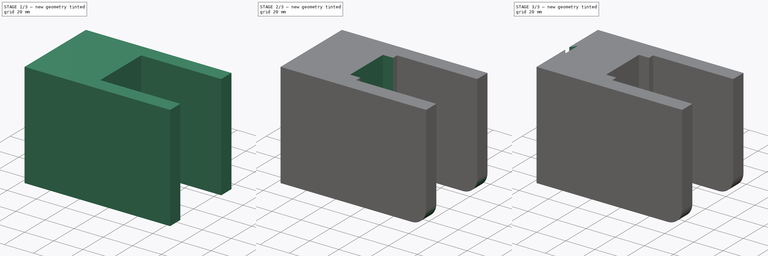
[diagram: build sequence overview — one tinted view per stage of 3, left to right]
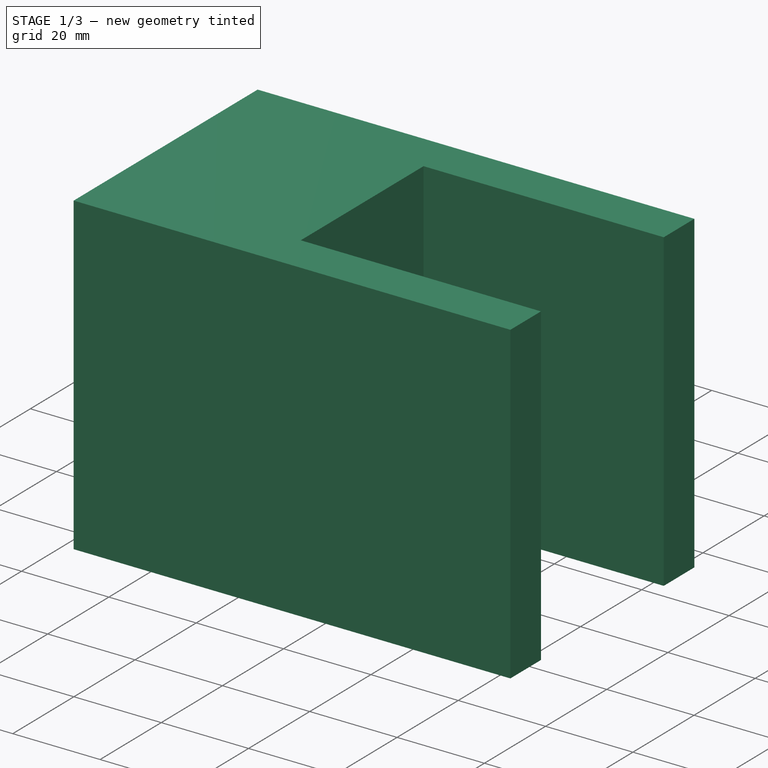
[diagram: stage 1 of 3 — iso view after this stage's code; geometry added in this stage tinted green]
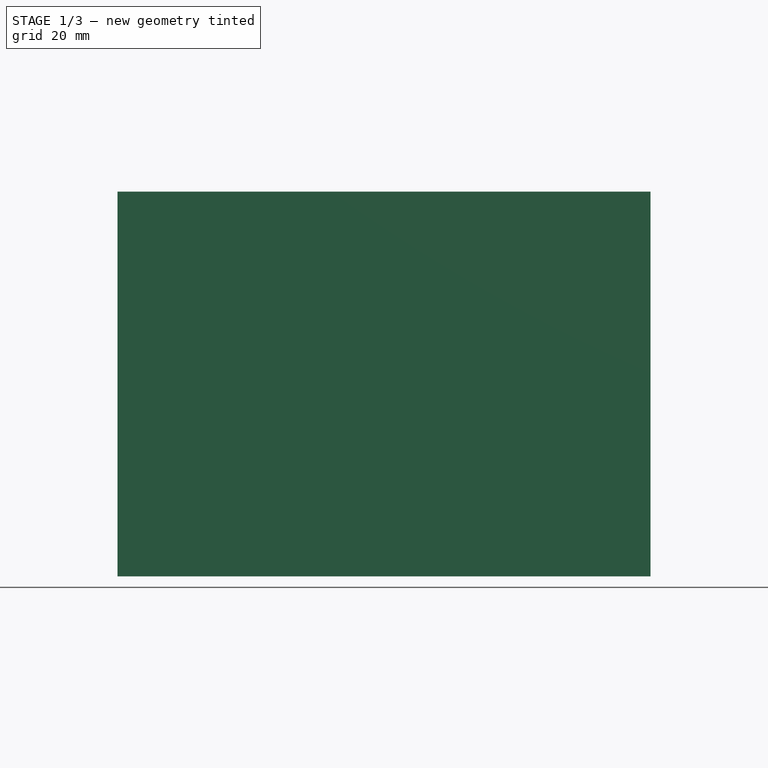
[diagram: stage 1 of 3 — front view after this stage's code; geometry added in this stage tinted green]
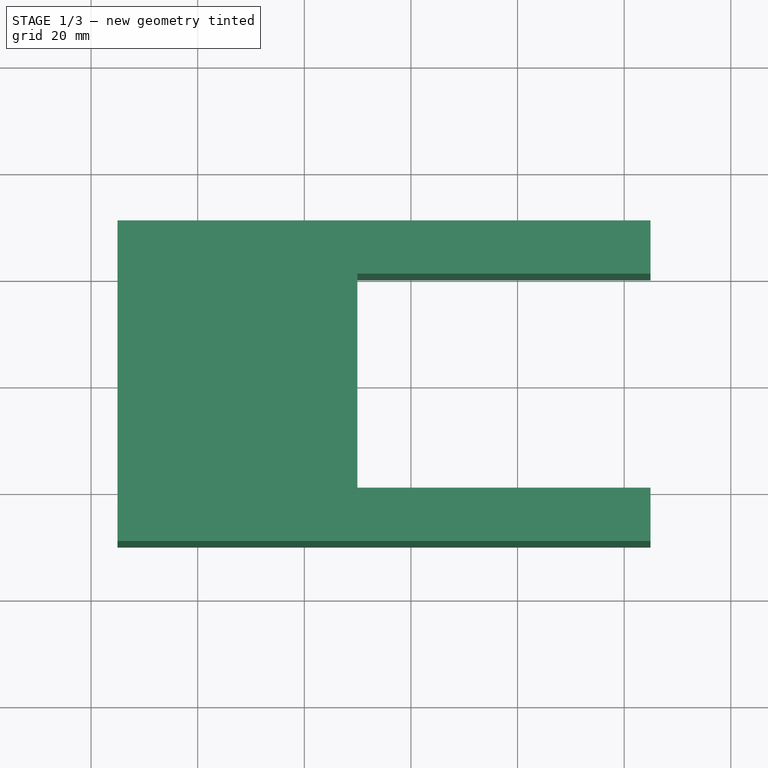
[diagram: stage 1 of 3 — top view after this stage's code; geometry added in this stage tinted green]
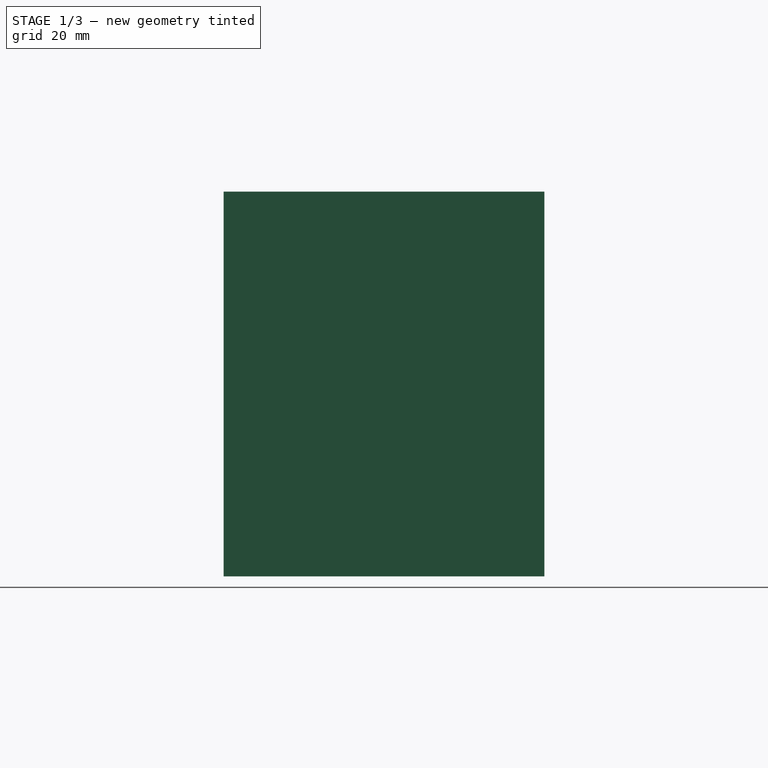
[diagram: stage 1 of 3 — right view after this stage's code; geometry added in this stage tinted green]
FCSTD DOCUMENT  (FreeCAD 0.20R29177 (Git))
Label: Box02
License: All rights reserved
LicenseURL: http://en.wikipedia.org/wiki/All_rights_reserved
objects: Sketcher::SketchObject×5, PartDesign::Pad×3, PartDesign::Pocket×2, PartDesign::Fillet×1, PartDesign::Body×1
note: 18 computed .brp shape members not serialized (recipe doc carries the construction recipe); baked Part::Feature solids carry a one-line shape summary decoded from their .brp

FEATURE [Sketcher::SketchObject] Sketch  label="Base001"
  FullyConstrained = false
  MapMode = 3
  Placement = pos=(24.6951,0,0) rot=(0.57735,0.57735,0.57735;4.18879rad)
  sketch-geometry (14):
    g0: LineSegment StartX=-27.0896 StartY=5.25177 StartZ=0 EndX=34.3104 EndY=5.25177 EndZ=0
    g1: LineSegment StartX=-35.6896 StartY=-4.04823 StartZ=0 EndX=-35.6896 EndY=0.251773 EndZ=0
    g2: LineSegment StartX=-27.0896 StartY=-1.74823 StartZ=0 EndX=-29.3896 EndY=-1.74823 EndZ=0
    g3: LineSegment StartX=-27.0896 StartY=5.25177 StartZ=0 EndX=-27.0896 EndY=-1.74823 EndZ=0
    g4: LineSegment StartX=-35.6896 StartY=0.251773 StartZ=0 EndX=-33.6896 EndY=0.251773 EndZ=0
    g5: LineSegment StartX=-33.6896 StartY=0.251773 StartZ=0 EndX=-33.6896 EndY=-1.74823 EndZ=0
    g6: LineSegment StartX=-31.3896 StartY=0.251773 StartZ=0 EndX=-29.3896 EndY=0.251773 EndZ=0
    g7: LineSegment StartX=-29.3896 StartY=0.251773 StartZ=0 EndX=-29.3896 EndY=-1.74823 EndZ=0
    g8: LineSegment StartX=-31.3896 StartY=-1.74823 StartZ=0 EndX=-31.3896 EndY=0.251773 EndZ=0
    g9: LineSegment StartX=-31.3896 StartY=-1.74823 StartZ=0 EndX=-33.6896 EndY=-1.74823 EndZ=0
    g10: LineSegment StartX=-35.6896 StartY=-4.04823 StartZ=0 EndX=-37.8396 EndY=-4.04823 EndZ=0
    g11: LineSegment StartX=-37.8396 StartY=-4.04823 StartZ=0 EndX=-37.8396 EndY=-39.7482 EndZ=0
    g12: LineSegment StartX=-37.8396 StartY=-39.7482 StartZ=0 EndX=34.3104 EndY=-39.7482 EndZ=0
    g13: LineSegment StartX=34.3104 StartY=-39.7482 StartZ=0 EndX=34.3104 EndY=5.25177 EndZ=0
  constraints (39):
    c: Horizontal(g0)
    c: DistanceX(g1,g0) = 70
    c: Coincident(g3,g2)
    c: Horizontal(g2)
    c: Vertical(g3)
    c: DistanceY(g3,g3) = 7
    c: Coincident(g4,g5)
    c: Horizontal(g4)
    c: Vertical(g5)
    c: DistanceX(g4,g4) = 2
    c: DistanceY(g5,g5) = 2
    c: Coincident(g0,g3)
    c: Coincident(g6,g7)
    c: Coincident(g8,g6)
    c: Horizontal(g6)
    c: Vertical(g7)
    c: Vertical(g8)
    c: DistanceX(g6,g6) = 2
    c: DistanceY(g8,g8) = 2
    c: DistanceX(g4,g6) = 2.3
    c: Coincident(g2,g7)
    c: Tangent(g2,g9)
    c: Coincident(g8,g9)
    c: Coincident(g5,g9)
    c: Coincident(g10,g11)
    c: Coincident(g11,g12)
    c: Coincident(g12,g13)
    c: Horizontal(g10)
    c: Horizontal(g12)
    c: Vertical(g11)
    c: Vertical(g13)
    c: Coincident(g1,g10)
    c: Coincident(g13,g0)
    c: Vertical(g1)
    c: Coincident(g1,g4)
    c: DistanceX(g2,g2) = 2.3
    c: DistanceY(g1,g1) = 4.3
    c: DistanceX(g10,g10) = 2.15
    c: DistanceY(g13,g13) = 45
FEATURE [PartDesign::Pad] Pad  label="Base"
  AllowMultiFace = false
  Direction = (1,1,1)
  Length = 40.15
  Length2 = 100
  Placement = pos=(24.6951,0,0) rot=(0.57735,0.57735,0.57735;4.18879rad)
  Profile = -> Sketch
  Type = 0
FEATURE [Sketcher::SketchObject] Sketch001  label="Sides001"
  ExternalGeometry = -> [Pad]
  FullyConstrained = false
  MapMode = 5
  Placement = pos=(-15.0532,-8.7e-15,0) rot=(0,-1,0;1.5708rad)
  Support = -> [Pad]
  sketch-geometry (8):
    g0: LineSegment StartX=-37.8396 StartY=-3e-15 StartZ=0 EndX=34.3104 EndY=-3.1e-15 EndZ=0
    g1: LineSegment StartX=34.3104 StartY=-3.1e-15 StartZ=0 EndX=34.3104 EndY=-10 EndZ=0
    g2: LineSegment StartX=34.3104 StartY=-10 StartZ=0 EndX=-37.8396 EndY=-10 EndZ=0
    g3: LineSegment StartX=-37.8396 StartY=-10 StartZ=0 EndX=-37.8396 EndY=-3.6e-15 EndZ=0
    g4: LineSegment StartX=-37.8396 StartY=50.15 StartZ=0 EndX=34.3104 EndY=50.15 EndZ=0
    g5: LineSegment StartX=34.3104 StartY=50.15 StartZ=0 EndX=34.3104 EndY=40.15 EndZ=0
    g6: LineSegment StartX=34.3104 StartY=40.15 StartZ=0 EndX=-37.8396 EndY=40.15 EndZ=0
    g7: LineSegment StartX=-37.8396 StartY=40.15 StartZ=0 EndX=-37.8396 EndY=50.15 EndZ=0
  constraints (20):
    c: Coincident(g0,g1)
    c: Coincident(g1,g2)
    c: Coincident(g2,g3)
    c: Coincident(g3,g0)
    c: Horizontal(g2)
    c: Vertical(g1)
    c: Vertical(g3)
    c: Coincident(g4,g5)
    c: Coincident(g5,g6)
    c: Coincident(g6,g7)
    c: Coincident(g7,g4)
    c: Horizontal(g4)
    c: Vertical(g5)
    c: Vertical(g7)
    c: Coincident(g6,g-3)
    c: Coincident(g5,g-3)
    c: Coincident(g0,g-4)
    c: Coincident(g0,g-4)
    c: DistanceY(g7,g7) = 10
    c: DistanceY(g3,g3) = 10
FEATURE [PartDesign::Pad] Pad001  label="Sides"
  AllowMultiFace = false
  BaseFeature = -> Pad
  Direction = (1,1,1)
  Length = 100
  Length2 = 47
  Offset = 100
  Placement = pos=(24.6951,0,0) rot=(0.57735,0.57735,0.57735;4.18879rad)
  Profile = -> Sketch001
  Reversed = true
  Type = 0
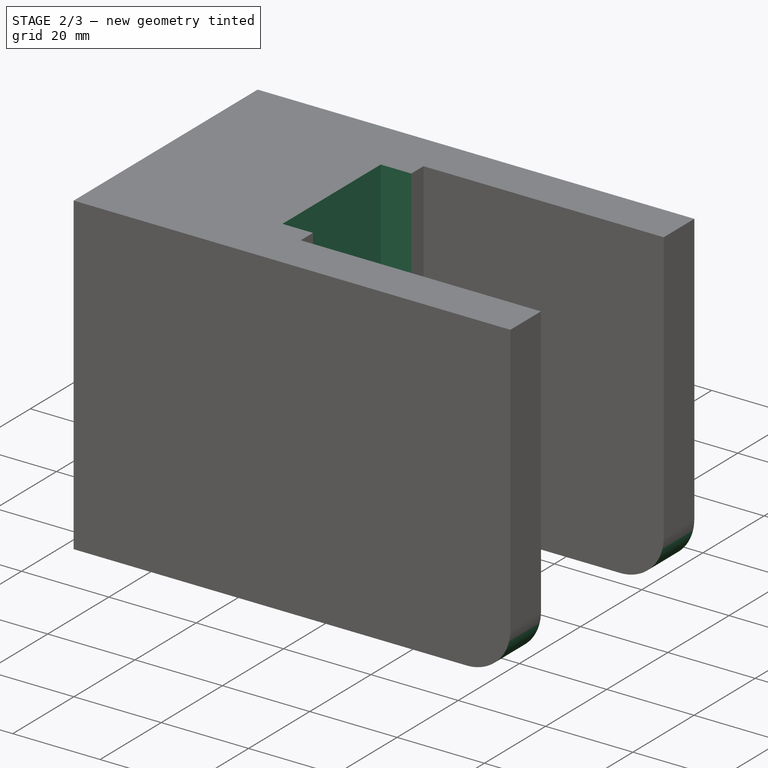
[diagram: stage 2 of 3 — iso view after this stage's code; geometry added in this stage tinted green]
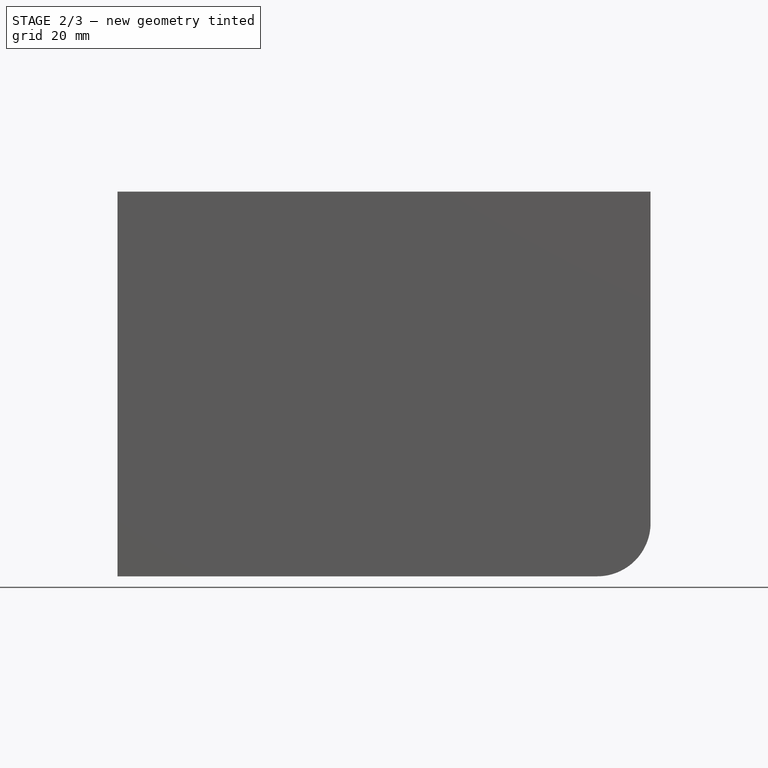
[diagram: stage 2 of 3 — front view after this stage's code; geometry added in this stage tinted green]
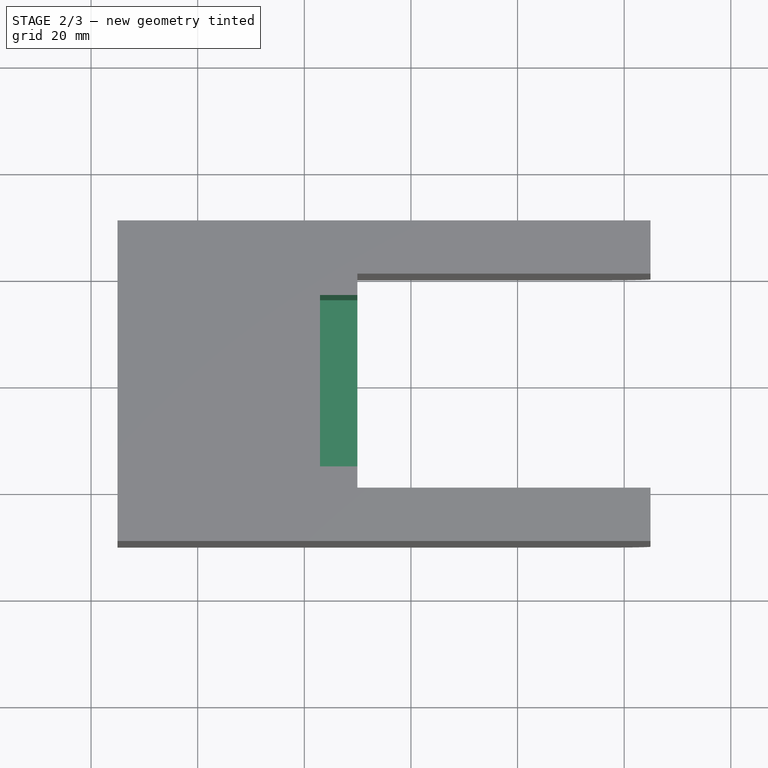
[diagram: stage 2 of 3 — top view after this stage's code; geometry added in this stage tinted green]
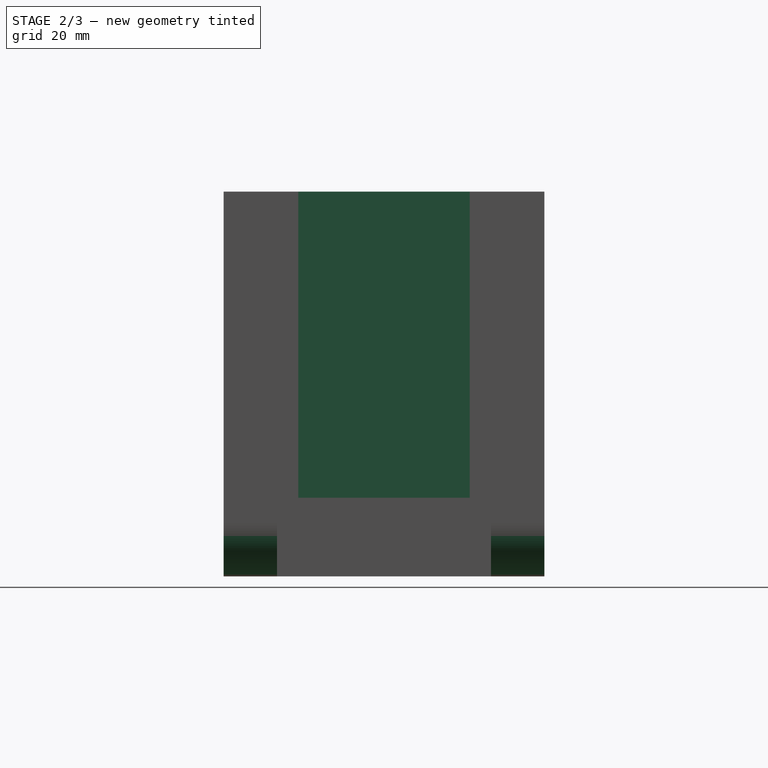
[diagram: stage 2 of 3 — right view after this stage's code; geometry added in this stage tinted green]
FEATURE [PartDesign::Fillet] Fillet  label="SoftSides"
  Base = -> Pad001 [Edge48,Edge55]
  BaseFeature = -> Pad001
  Placement = pos=(24.6951,0,0) rot=(0.57735,0.57735,0.57735;4.18879rad)
  Radius = 10
  SupportTransform = false
  UseAllEdges = false
FEATURE [Sketcher::SketchObject] Sketch002  label="Circuit001"
  ExternalGeometry = -> [Fillet]
  FullyConstrained = false
  MapMode = 5
  Placement = pos=(29.9468,1.2e-15,0) rot=(0,1,0;1.5708rad)
  Support = -> [Fillet]
  sketch-geometry (4):
    g0: LineSegment StartX=-34.3104 StartY=36.15 StartZ=0 EndX=23.0896 EndY=36.15 EndZ=0
    g1: LineSegment StartX=23.0896 StartY=36.15 StartZ=0 EndX=23.0896 EndY=4 EndZ=0
    g2: LineSegment StartX=23.0896 StartY=4 StartZ=0 EndX=-34.3104 EndY=4 EndZ=0
    g3: LineSegment StartX=-34.3104 StartY=4 StartZ=0 EndX=-34.3104 EndY=36.15 EndZ=0
  constraints (12):
    c: Coincident(g0,g1)
    c: Coincident(g1,g2)
    c: Coincident(g2,g3)
    c: Coincident(g3,g0)
    c: Horizontal(g0)
    c: Horizontal(g2)
    c: Vertical(g1)
    c: Vertical(g3)
    c: DistanceX(g-3,g0) = 0
    c: DistanceY(g0,g-3) = 4
    c: DistanceX(g0,g-4) = 4
    c: DistanceY(g-3,g2) = 4
FEATURE [PartDesign::Pocket] Pocket  label="Circuit"
  AllowMultiFace = false
  BaseFeature = -> Fillet
  Direction = (1,1,1)
  Length = 7
  Length2 = 100
  Placement = pos=(24.6951,0,0) rot=(0.57735,0.57735,0.57735;4.18879rad)
  Profile = -> Sketch002
  Type = 0
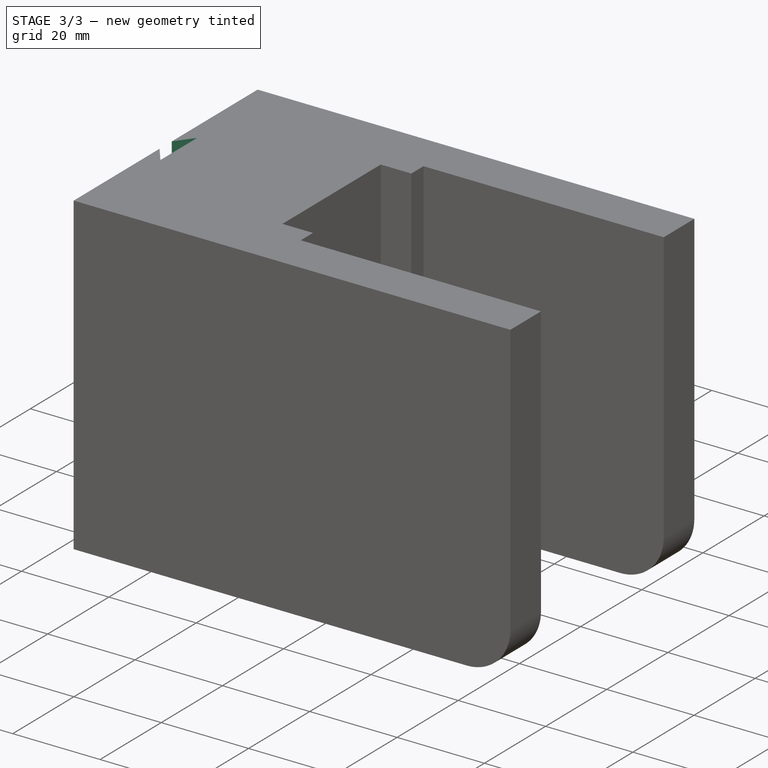
[diagram: stage 3 of 3 — iso view after this stage's code; geometry added in this stage tinted green]
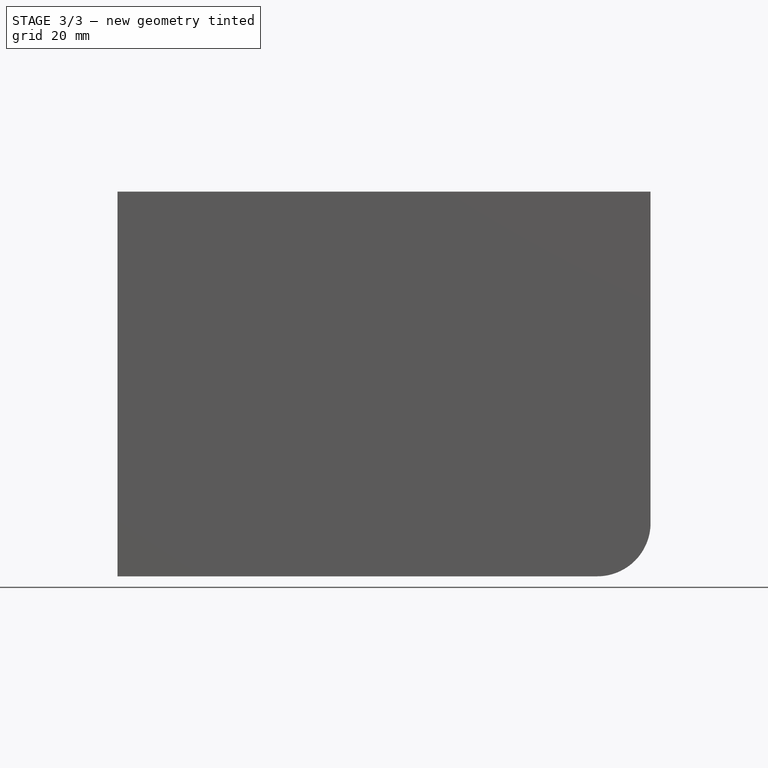
[diagram: stage 3 of 3 — front view after this stage's code; geometry added in this stage tinted green]
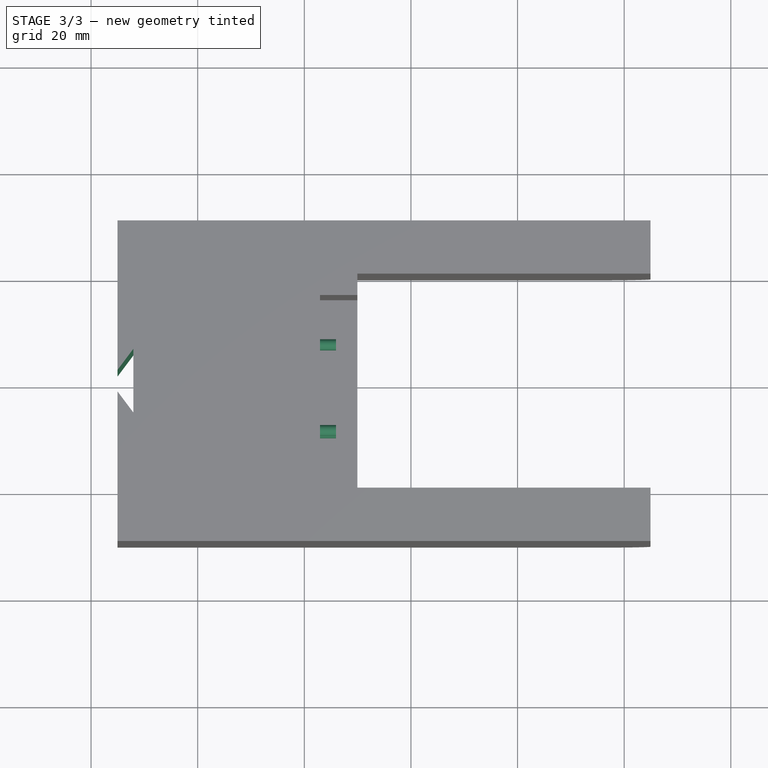
[diagram: stage 3 of 3 — top view after this stage's code; geometry added in this stage tinted green]
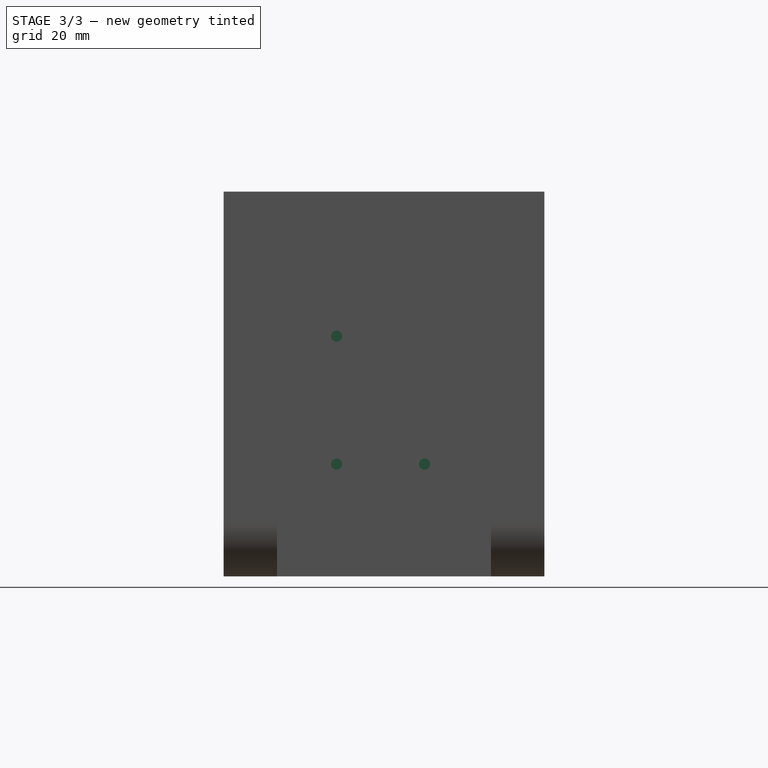
[diagram: stage 3 of 3 — right view after this stage's code; geometry added in this stage tinted green]
FEATURE [Sketcher::SketchObject] Sketch003
  ExternalGeometry = -> [Pocket]
  FullyConstrained = false
  MapMode = 5
  Placement = pos=(22.9468,-8e-16,4e-16) rot=(0,1,0;1.5708rad)
  Support = -> [Pocket]
  sketch-geometry (3):
    g0: Circle CenterX=16.7896 CenterY=11.1839 CenterZ=0 NormalX=0 NormalY=0 NormalZ=1 AngleXU=0 Radius=1.05
    g1: Circle CenterX=16.7896 CenterY=27.6839 CenterZ=0 NormalX=0 NormalY=0 NormalZ=1 AngleXU=0 Radius=1.05
    g2: Circle CenterX=-7.2104 CenterY=11.1839 CenterZ=0 NormalX=0 NormalY=0 NormalZ=1 AngleXU=0 Radius=1.05
  constraints (8):
    c: Radius(g1) = 1.05
    c: Radius(g0) = 1.05
    c: Radius(g2) = 1.05
    c: DistanceY(g0,g1) = 16.5
    c: DistanceX(g0,g1) = 0
    c: DistanceX(g2,g0) = 24
    c: DistanceY(g0,g2) = 0
    c: DistanceX(g1,g-3) = 6.3
FEATURE [PartDesign::Pad] Pad002  label="CircuitHolder"
  AllowMultiFace = false
  BaseFeature = -> Pocket
  Direction = (1,1,1)
  Length = 3
  Length2 = 100
  Placement = pos=(24.6951,0,0) rot=(0.57735,0.57735,0.57735;4.18879rad)
  Profile = -> Sketch003
  Type = 0
FEATURE [Sketcher::SketchObject] Sketch004  label="Beam001"
  ExternalGeometry = -> [Pad002]
  FullyConstrained = false
  MapMode = 5
  Placement = pos=(24.6951,0,-37.8396) rot=(0,1,0;3.14159rad)
  Support = -> [Pad002]
  sketch-geometry (5):
    g0: LineSegment StartX=36.7482 StartY=26.075 StartZ=0 EndX=39.7482 EndY=22.075 EndZ=0
    g1: LineSegment StartX=39.7482 StartY=22.075 StartZ=0 EndX=39.7482 EndY=18.075 EndZ=0
    g2: LineSegment StartX=39.7482 StartY=18.075 StartZ=0 EndX=36.7482 EndY=14.075 EndZ=0
    g3: LineSegment StartX=36.7482 StartY=14.075 StartZ=0 EndX=36.7482 EndY=26.075 EndZ=0
    g4: GeomPoint X=39.7482 Y=-40.15 Z=0
  constraints (14):
    c: Coincident(g0,g1)
    c: Coincident(g1,g2)
    c: Coincident(g2,g3)
    c: Coincident(g3,g0)
    c: Vertical(g1)
    c: Vertical(g3)
    c: DistanceY(g3,g3) = 12
    c: DistanceY(g1,g1) = 4
    c: DistanceX(g0,g0) = 3
    c: DistanceY(g2,g1) = 4
    c: DistanceX(g0,g-3) = 0
    c: Symmetric(g4,g-3,g-3)
    c: DistanceY(g-3,g-3) = 40.15
    c: DistanceY(g0,g-3) = 18.075
FEATURE [PartDesign::Pocket] Pocket001  label="Beam"
  AllowMultiFace = false
  BaseFeature = -> Pad002
  Direction = (1,1,1)
  Length = 5
  Length2 = 100
  Placement = pos=(24.6951,0,0) rot=(0.57735,0.57735,0.57735;4.18879rad)
  Profile = -> Sketch004
  Type = 1
FEATURE [PartDesign::Body] Body
  Group = -> [Sketch,Pad,Sketch001,Pad001,Fillet,Sketch002,Pocket,Sketch003,Pad002,Sketch004,Pocket001]
  Origin = -> Origin
  Tip = -> Pocket001
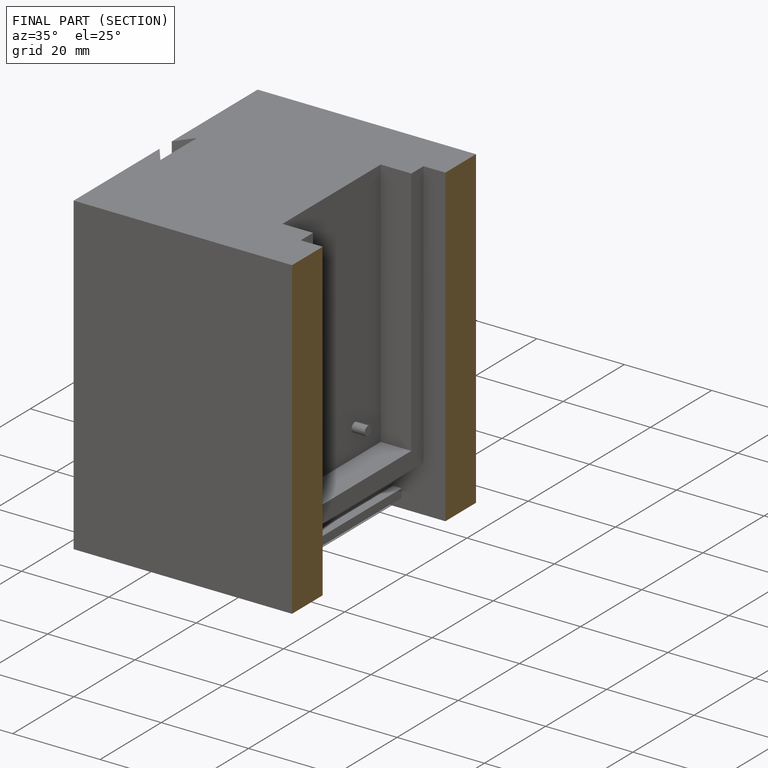
[diagram: finished part — half-section view (interior)]
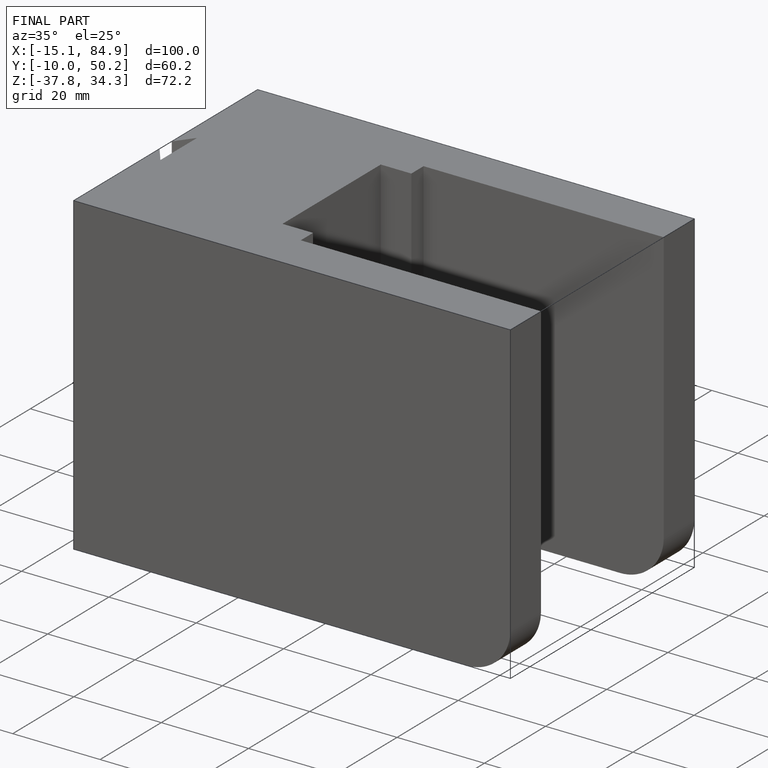
[diagram: finished part — iso view with bounding-box wireframe]
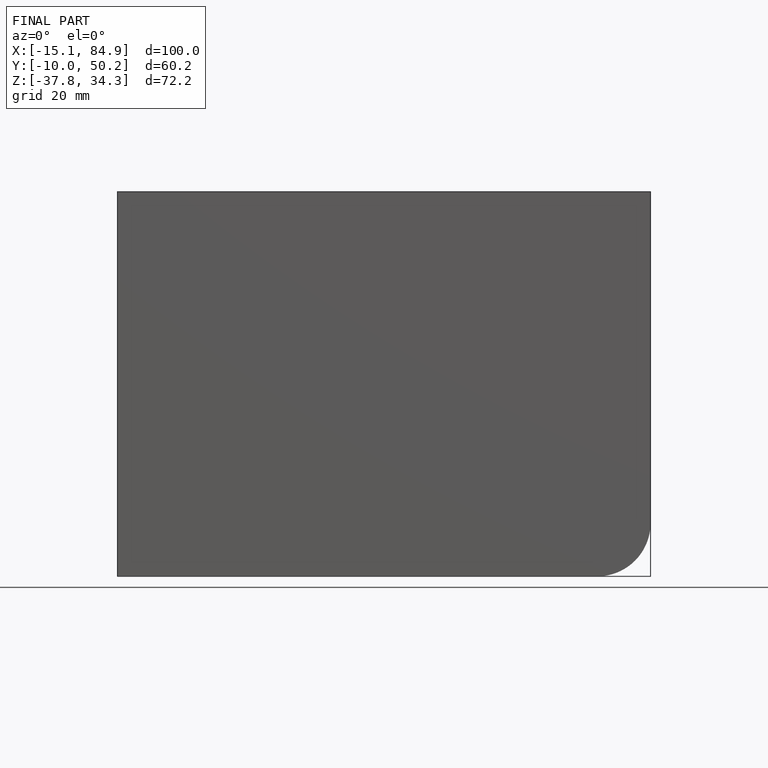
[diagram: finished part — front view with bounding-box wireframe]
